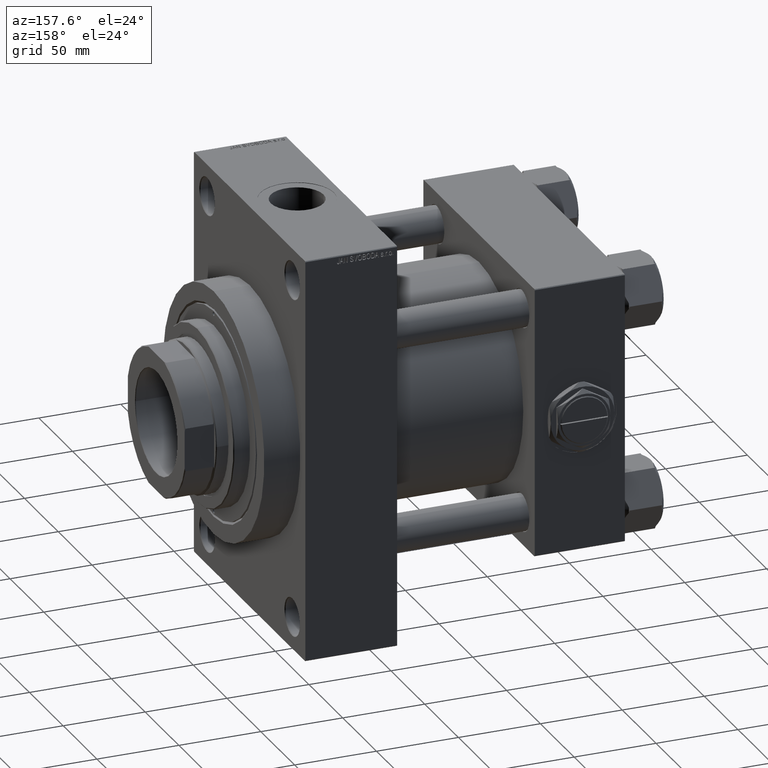
[diagram: clean part render]
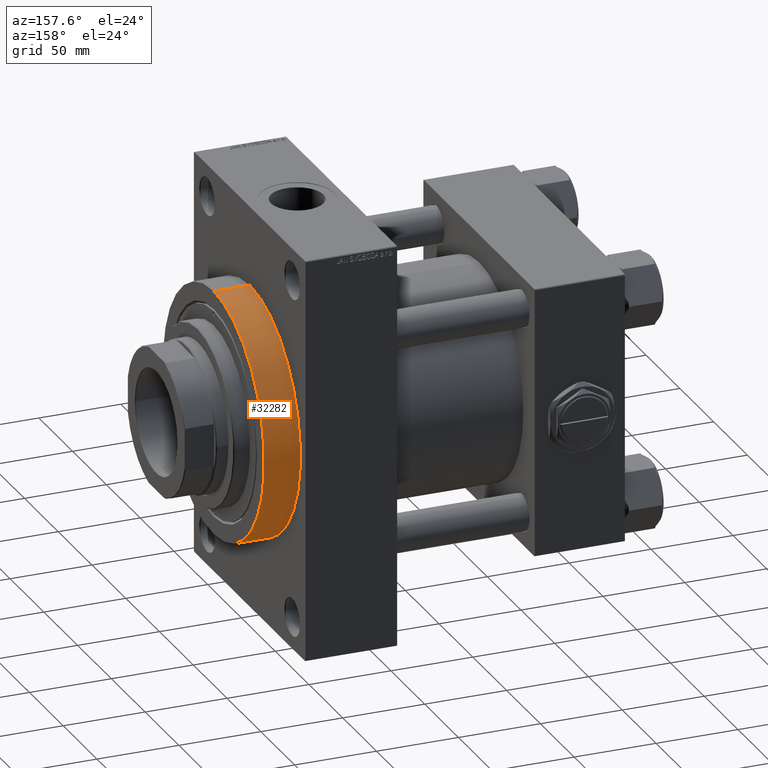
[diagram: same view with one face highlighted and labeled with its STEP entity id]
A machine part, auxiliary view. The second image highlights one B-rep face of the part: STEP entity #32282.
In plain terms, the highlighted cylindrical surface (partial cylindrical patch) has radius 75 mm, axis along (-1, -0, -0).
Its self-contained STEP definition (entity closure, byte-faithful):
#221 = CARTESIAN_POINT ( 'NONE',  ( 217.0000000000000000, 9.184850993605150311E-15, -75.00000000000001421 ) ) ;
#3739 = CIRCLE ( 'NONE', #31899, 75.00000000000001421 ) ;
#4275 = CARTESIAN_POINT ( 'NONE',  ( 195.0000000000000000, 9.184850993605150311E-15, -75.00000000000001421 ) ) ;
#5542 = EDGE_LOOP ( 'NONE', ( #11446, #25777, #38641, #16006 ) ) ;
#7518 = FACE_OUTER_BOUND ( 'NONE', #5542, .T. ) ;
#8062 = EDGE_CURVE ( 'NONE', #26088, #26505, #3739, .T. ) ;
#8778 = CARTESIAN_POINT ( 'NONE',  ( 217.0000000000000000, 0.000000000000000000, 0.000000000000000000 ) ) ;
#11446 = ORIENTED_EDGE ( 'NONE', *, *, #8062, .F. ) ;
#12037 = CYLINDRICAL_SURFACE ( 'NONE', #34682, 75.00000000000001421 ) ;
#13061 = DIRECTION ( 'NONE',  ( 1.000000000000000000, 0.000000000000000000, 0.000000000000000000 ) ) ;
#13548 = DIRECTION ( 'NONE',  ( 0.000000000000000000, 0.000000000000000000, -1.000000000000000000 ) ) ;
#16006 = ORIENTED_EDGE ( 'NONE', *, *, #24269, .F. ) ;
#17574 = CARTESIAN_POINT ( 'NONE',  ( 195.0000000000000000, 0.000000000000000000, 0.000000000000000000 ) ) ;
#17829 = CARTESIAN_POINT ( 'NONE',  ( 217.0000000000000000, 0.000000000000000000, 75.00000000000001421 ) ) ;
#20855 = DIRECTION ( 'NONE',  ( 0.000000000000000000, 0.000000000000000000, -1.000000000000000000 ) ) ;
#22627 = DIRECTION ( 'NONE',  ( 0.000000000000000000, 0.000000000000000000, 1.000000000000000000 ) ) ;
#24269 = EDGE_CURVE ( 'NONE', #26505, #27178, #48059, .T. ) ;
#24903 = DIRECTION ( 'NONE',  ( 1.000000000000000000, 0.000000000000000000, 0.000000000000000000 ) ) ;
#25777 = ORIENTED_EDGE ( 'NONE', *, *, #29666, .T. ) ;
#26088 = VERTEX_POINT ( 'NONE', #31225 ) ;
#26505 = VERTEX_POINT ( 'NONE', #36664 ) ;
#26946 = VERTEX_POINT ( 'NONE', #4275 ) ;
#27178 = VERTEX_POINT ( 'NONE', #48812 ) ;
#27232 = CIRCLE ( 'NONE', #39982, 75.00000000000001421 ) ;
#29431 = DIRECTION ( 'NONE',  ( -1.000000000000000000, -0.000000000000000000, -0.000000000000000000 ) ) ;
#29666 = EDGE_CURVE ( 'NONE', #26088, #26946, #42299, .T. ) ;
#31185 = DIRECTION ( 'NONE',  ( -1.000000000000000000, -0.000000000000000000, -0.000000000000000000 ) ) ;
#31225 = CARTESIAN_POINT ( 'NONE',  ( 217.0000000000000000, 9.184850993605150311E-15, -75.00000000000001421 ) ) ;
#31899 = AXIS2_PLACEMENT_3D ( 'NONE', #8778, #13061, #20855 ) ;
#32282 = ADVANCED_FACE ( 'NONE', ( #7518 ), #12037, .T. ) ;
#34682 = AXIS2_PLACEMENT_3D ( 'NONE', #42035, #31185, #22627 ) ;
#36664 = CARTESIAN_POINT ( 'NONE',  ( 217.0000000000000000, 0.000000000000000000, 75.00000000000001421 ) ) ;
#37630 = VECTOR ( 'NONE', #29431, 1000.000000000000000 ) ;
#38641 = ORIENTED_EDGE ( 'NONE', *, *, #40042, .T. ) ;
#39982 = AXIS2_PLACEMENT_3D ( 'NONE', #17574, #24903, #13548 ) ;
#40042 = EDGE_CURVE ( 'NONE', #26946, #27178, #27232, .T. ) ;
#42035 = CARTESIAN_POINT ( 'NONE',  ( 217.0000000000000000, 0.000000000000000000, 0.000000000000000000 ) ) ;
#42299 = LINE ( 'NONE', #221, #45049 ) ;
#45049 = VECTOR ( 'NONE', #46078, 1000.000000000000000 ) ;
#46078 = DIRECTION ( 'NONE',  ( -1.000000000000000000, -0.000000000000000000, -0.000000000000000000 ) ) ;
#48059 = LINE ( 'NONE', #17829, #37630 ) ;
#48812 = CARTESIAN_POINT ( 'NONE',  ( 195.0000000000000000, 0.000000000000000000, 75.00000000000001421 ) ) ;